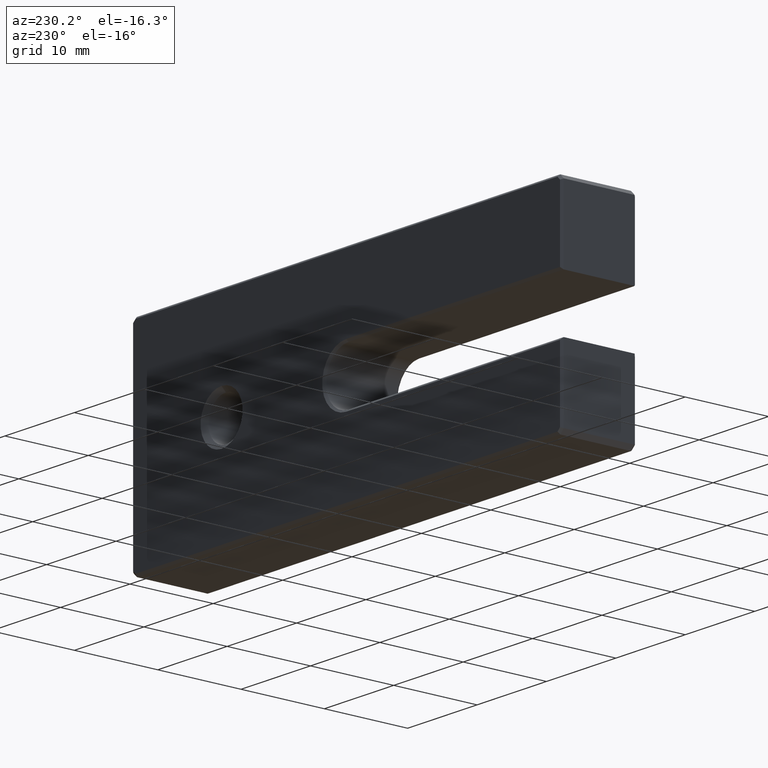
[diagram: clean part render]
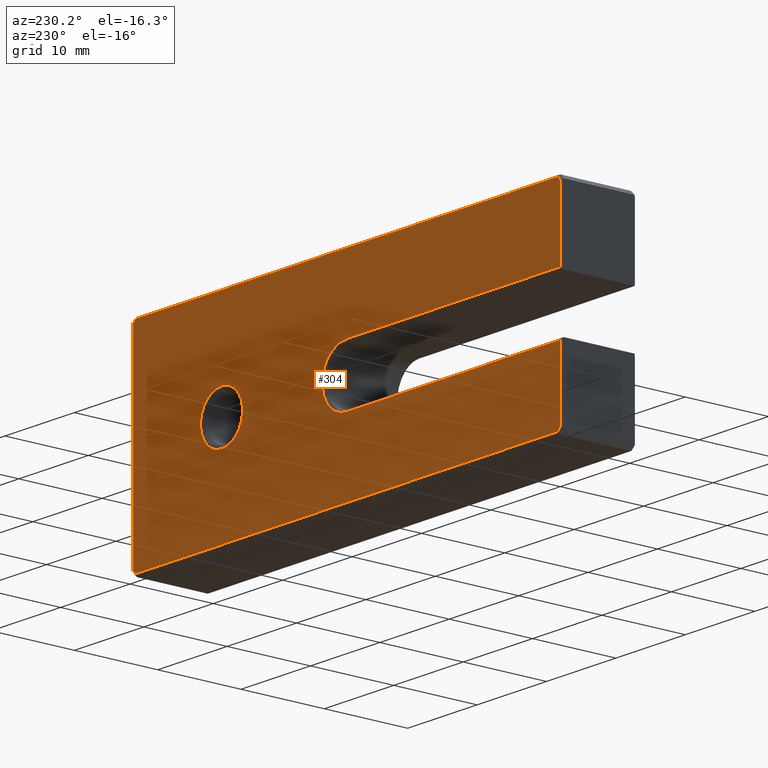
[diagram: same view with one face highlighted and labeled with its STEP entity id]
A machine part, auxiliary view. The second image highlights one B-rep face of the part: STEP entity #304.
In plain terms, the highlighted planar face has unit normal (0, 1, 0).
Its self-contained STEP definition (entity closure, byte-faithful):
#24 = ORIENTED_EDGE ( 'NONE', *, *, #568, .T. ) ;
#28 = CARTESIAN_POINT ( 'NONE',  ( 30.49999999999999645, 9.000000000000000000, 12.25000000000000178 ) ) ;
#30 = EDGE_LOOP ( 'NONE', ( #965, #822, #43, #24, #32, #1081, #387, #433, #143, #915, #236, #296 ) ) ;
#32 = ORIENTED_EDGE ( 'NONE', *, *, #637, .T. ) ;
#43 = ORIENTED_EDGE ( 'NONE', *, *, #684, .T. ) ;
#47 = EDGE_CURVE ( 'NONE', #1067, #1067, #1092, .T. ) ;
#49 = DIRECTION ( 'NONE',  ( 0.000000000000000000, 0.000000000000000000, 1.000000000000000000 ) ) ;
#52 = DIRECTION ( 'NONE',  ( -0.000000000000000000, -1.000000000000000000, -0.000000000000000000 ) ) ;
#67 = VECTOR ( 'NONE', #116, 1000.000000000000000 ) ;
#85 = CIRCLE ( 'NONE', #605, 3.500000000000000000 ) ;
#97 = EDGE_CURVE ( 'NONE', #121, #988, #229, .T. ) ;
#98 = CARTESIAN_POINT ( 'NONE',  ( -30.39644660940672338, 9.000000000000000000, 12.25000000000000178 ) ) ;
#101 = CARTESIAN_POINT ( 'NONE',  ( 30.74999999999999645, 9.000000000000000000, 11.89644660940673404 ) ) ;
#116 = DIRECTION ( 'NONE',  ( -1.387778780781445676E-16, 0.000000000000000000, -1.000000000000000000 ) ) ;
#121 = VERTEX_POINT ( 'NONE', #354 ) ;
#136 = DIRECTION ( 'NONE',  ( 1.000000000000000000, 0.000000000000000000, -5.595882180570342961E-17 ) ) ;
#143 = ORIENTED_EDGE ( 'NONE', *, *, #672, .T. ) ;
#149 = CARTESIAN_POINT ( 'NONE',  ( 1.398970545142586973E-17, 9.000000000000000000, 3.500000000000000000 ) ) ;
#166 = CARTESIAN_POINT ( 'NONE',  ( 17.99999999999999645, 9.000000000000000000, 0.000000000000000000 ) ) ;
#198 = EDGE_CURVE ( 'NONE', #1036, #982, #360, .T. ) ;
#206 = DIRECTION ( 'NONE',  ( -0.7071067811865474617, 0.000000000000000000, -0.7071067811865474617 ) ) ;
#210 = CARTESIAN_POINT ( 'NONE',  ( 30.74999999999999289, 9.000000000000000000, -12.00000000000000533 ) ) ;
#211 = LINE ( 'NONE', #914, #793 ) ;
#217 = CARTESIAN_POINT ( 'NONE',  ( 0.000000000000000000, 9.000000000000000000, 0.000000000000000000 ) ) ;
#228 = FACE_BOUND ( 'NONE', #859, .T. ) ;
#229 = LINE ( 'NONE', #749, #647 ) ;
#236 = ORIENTED_EDGE ( 'NONE', *, *, #758, .T. ) ;
#278 = LINE ( 'NONE', #877, #852 ) ;
#286 = VECTOR ( 'NONE', #206, 1000.000000000000114 ) ;
#289 = EDGE_CURVE ( 'NONE', #318, #362, #211, .T. ) ;
#296 = ORIENTED_EDGE ( 'NONE', *, *, #581, .T. ) ;
#301 = VERTEX_POINT ( 'NONE', #1091 ) ;
#304 = ADVANCED_FACE ( 'NONE', ( #228, #656 ), #827, .T. ) ;
#307 = LINE ( 'NONE', #28, #595 ) ;
#311 = VERTEX_POINT ( 'NONE', #149 ) ;
#318 = VERTEX_POINT ( 'NONE', #731 ) ;
#351 = CARTESIAN_POINT ( 'NONE',  ( 30.39644660940672694, 9.000000000000000000, -12.24999999999999822 ) ) ;
#354 = CARTESIAN_POINT ( 'NONE',  ( -30.39644660940673404, 9.000000000000000000, -12.24999999999999822 ) ) ;
#359 = LINE ( 'NONE', #704, #1014 ) ;
#360 = LINE ( 'NONE', #711, #1127 ) ;
#362 = VERTEX_POINT ( 'NONE', #725 ) ;
#383 = CARTESIAN_POINT ( 'NONE',  ( 0.000000000000000000, 9.000000000000000000, 0.000000000000000000 ) ) ;
#387 = ORIENTED_EDGE ( 'NONE', *, *, #1043, .T. ) ;
#388 = CARTESIAN_POINT ( 'NONE',  ( -30.75000000000000711, 9.000000000000000000, 12.00000000000000178 ) ) ;
#397 = EDGE_CURVE ( 'NONE', #311, #582, #736, .T. ) ;
#408 = DIRECTION ( 'NONE',  ( -1.000000000000000000, 0.000000000000000000, 5.595882180570342961E-17 ) ) ;
#411 = CARTESIAN_POINT ( 'NONE',  ( 30.74999999999999289, 9.000000000000000000, -11.89644660940673404 ) ) ;
#433 = ORIENTED_EDGE ( 'NONE', *, *, #289, .T. ) ;
#441 = CARTESIAN_POINT ( 'NONE',  ( 21.32322330470336169, 9.000000000000000000, -21.32322330470336169 ) ) ;
#448 = AXIS2_PLACEMENT_3D ( 'NONE', #217, #927, #482 ) ;
#450 = CARTESIAN_POINT ( 'NONE',  ( -30.75000000000000711, 9.000000000000000000, -11.89644660940673049 ) ) ;
#482 = DIRECTION ( 'NONE',  ( 0.000000000000000000, -0.000000000000000000, 1.000000000000000000 ) ) ;
#504 = CARTESIAN_POINT ( 'NONE',  ( -31.00000000000000711, 9.000000000000000000, 3.500000000000001776 ) ) ;
#520 = DIRECTION ( 'NONE',  ( -0.7071067811865524577, 0.000000000000000000, 0.7071067811865426878 ) ) ;
#533 = LINE ( 'NONE', #441, #286 ) ;
#568 = EDGE_CURVE ( 'NONE', #898, #1003, #533, .T. ) ;
#581 = EDGE_CURVE ( 'NONE', #301, #625, #1063, .T. ) ;
#582 = VERTEX_POINT ( 'NONE', #973 ) ;
#591 = ORIENTED_EDGE ( 'NONE', *, *, #47, .F. ) ;
#595 = VECTOR ( 'NONE', #649, 1000.000000000000000 ) ;
#605 = AXIS2_PLACEMENT_3D ( 'NONE', #383, #52, #642 ) ;
#624 = VECTOR ( 'NONE', #408, 1000.000000000000000 ) ;
#625 = VERTEX_POINT ( 'NONE', #98 ) ;
#637 = EDGE_CURVE ( 'NONE', #1003, #121, #359, .T. ) ;
#642 = DIRECTION ( 'NONE',  ( 0.000000000000000000, 0.000000000000000000, 1.000000000000000000 ) ) ;
#647 = VECTOR ( 'NONE', #520, 1000.000000000000000 ) ;
#649 = DIRECTION ( 'NONE',  ( 1.000000000000000000, 0.000000000000000000, 0.000000000000000000 ) ) ;
#656 = FACE_OUTER_BOUND ( 'NONE', #30, .T. ) ;
#672 = EDGE_CURVE ( 'NONE', #362, #311, #85, .T. ) ;
#684 = EDGE_CURVE ( 'NONE', #982, #898, #825, .T. ) ;
#704 = CARTESIAN_POINT ( 'NONE',  ( -30.50000000000000711, 9.000000000000000000, -12.24999999999999822 ) ) ;
#711 = CARTESIAN_POINT ( 'NONE',  ( 21.32322330470315208, 9.000000000000000000, 21.32322330470344696 ) ) ;
#725 = CARTESIAN_POINT ( 'NONE',  ( 0.000000000000000000, 9.000000000000000000, -3.500000000000000000 ) ) ;
#731 = CARTESIAN_POINT ( 'NONE',  ( -30.75000000000000711, 9.000000000000000000, -3.499999999999998224 ) ) ;
#735 = DIRECTION ( 'NONE',  ( 1.387778780781445676E-16, 0.000000000000000000, 1.000000000000000000 ) ) ;
#736 = LINE ( 'NONE', #504, #624 ) ;
#749 = CARTESIAN_POINT ( 'NONE',  ( -21.32322330470315563, 9.000000000000000000, -21.32322330470345051 ) ) ;
#758 = EDGE_CURVE ( 'NONE', #582, #301, #1090, .T. ) ;
#766 = EDGE_CURVE ( 'NONE', #625, #1036, #307, .T. ) ;
#781 = CARTESIAN_POINT ( 'NONE',  ( -21.32322330470315208, 9.000000000000000000, 21.32322330470345051 ) ) ;
#793 = VECTOR ( 'NONE', #136, 1000.000000000000000 ) ;
#802 = CARTESIAN_POINT ( 'NONE',  ( 30.39644660940671983, 9.000000000000000000, 12.25000000000000178 ) ) ;
#822 = ORIENTED_EDGE ( 'NONE', *, *, #198, .T. ) ;
#825 = LINE ( 'NONE', #210, #67 ) ;
#827 = PLANE ( 'NONE',  #448 ) ;
#852 = VECTOR ( 'NONE', #881, 1000.000000000000000 ) ;
#859 = EDGE_LOOP ( 'NONE', ( #591 ) ) ;
#877 = CARTESIAN_POINT ( 'NONE',  ( -30.75000000000000711, 9.000000000000000000, -3.249999999999998224 ) ) ;
#881 = DIRECTION ( 'NONE',  ( 1.387778780781445676E-16, 0.000000000000000000, 1.000000000000000000 ) ) ;
#898 = VERTEX_POINT ( 'NONE', #411 ) ;
#914 = CARTESIAN_POINT ( 'NONE',  ( -1.398970545142586973E-17, 9.000000000000000000, -3.500000000000000000 ) ) ;
#915 = ORIENTED_EDGE ( 'NONE', *, *, #397, .T. ) ;
#921 = VECTOR ( 'NONE', #1051, 999.9999999999998863 ) ;
#927 = DIRECTION ( 'NONE',  ( 0.000000000000000000, 1.000000000000000000, 0.000000000000000000 ) ) ;
#956 = DIRECTION ( 'NONE',  ( -1.000000000000000000, 0.000000000000000000, 0.000000000000000000 ) ) ;
#965 = ORIENTED_EDGE ( 'NONE', *, *, #766, .T. ) ;
#972 = AXIS2_PLACEMENT_3D ( 'NONE', #166, #1040, #49 ) ;
#973 = CARTESIAN_POINT ( 'NONE',  ( -30.75000000000000711, 9.000000000000000000, 3.500000000000001776 ) ) ;
#982 = VERTEX_POINT ( 'NONE', #101 ) ;
#988 = VERTEX_POINT ( 'NONE', #450 ) ;
#997 = CARTESIAN_POINT ( 'NONE',  ( 17.99999999999999645, 9.000000000000000000, 3.024999999999999911 ) ) ;
#1003 = VERTEX_POINT ( 'NONE', #351 ) ;
#1014 = VECTOR ( 'NONE', #956, 1000.000000000000000 ) ;
#1035 = VECTOR ( 'NONE', #735, 1000.000000000000000 ) ;
#1036 = VERTEX_POINT ( 'NONE', #802 ) ;
#1040 = DIRECTION ( 'NONE',  ( -0.000000000000000000, 1.000000000000000000, -0.000000000000000000 ) ) ;
#1043 = EDGE_CURVE ( 'NONE', #988, #318, #278, .T. ) ;
#1051 = DIRECTION ( 'NONE',  ( 0.7071067811865525687, 0.000000000000000000, 0.7071067811865425767 ) ) ;
#1063 = LINE ( 'NONE', #781, #921 ) ;
#1064 = DIRECTION ( 'NONE',  ( 0.7071067811865524577, 0.000000000000000000, -0.7071067811865426878 ) ) ;
#1067 = VERTEX_POINT ( 'NONE', #997 ) ;
#1081 = ORIENTED_EDGE ( 'NONE', *, *, #97, .T. ) ;
#1090 = LINE ( 'NONE', #388, #1035 ) ;
#1091 = CARTESIAN_POINT ( 'NONE',  ( -30.75000000000000711, 9.000000000000000000, 11.89644660940672516 ) ) ;
#1092 = CIRCLE ( 'NONE', #972, 3.024999999999999911 ) ;
#1127 = VECTOR ( 'NONE', #1064, 1000.000000000000000 ) ;